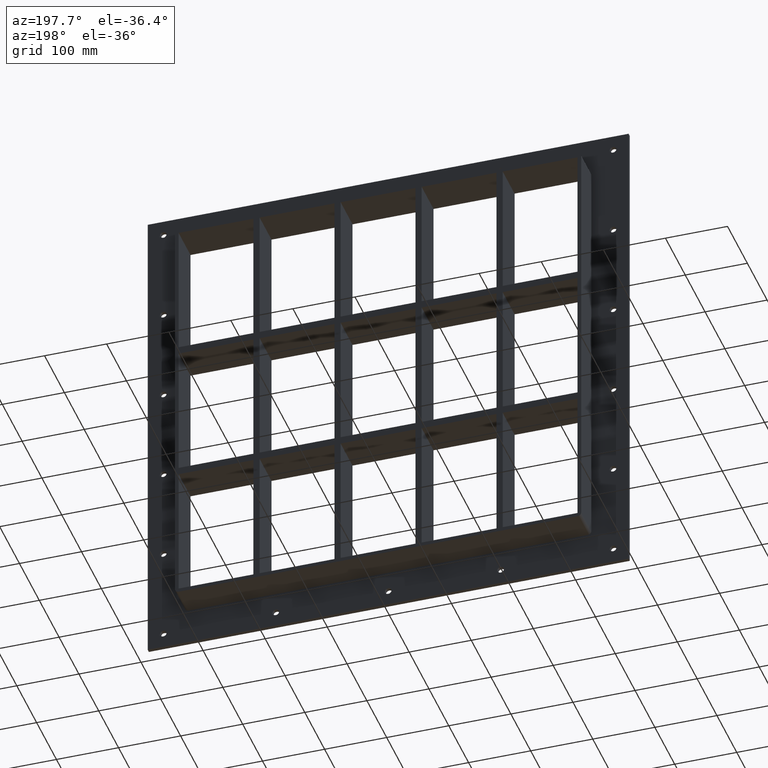
[diagram: clean part render]
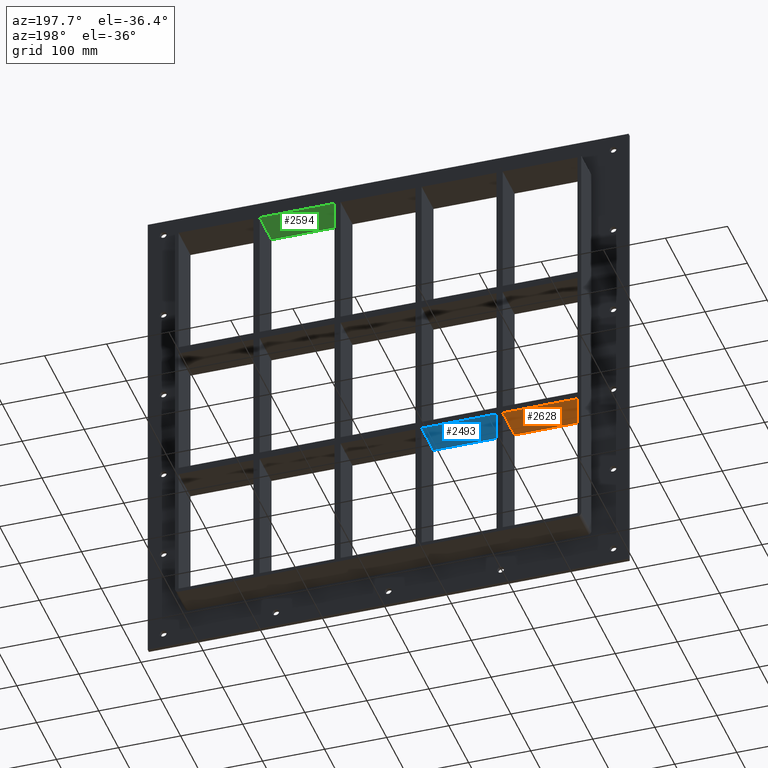
[diagram: same view with three faces highlighted in distinct colors, each labeled with its STEP entity id]
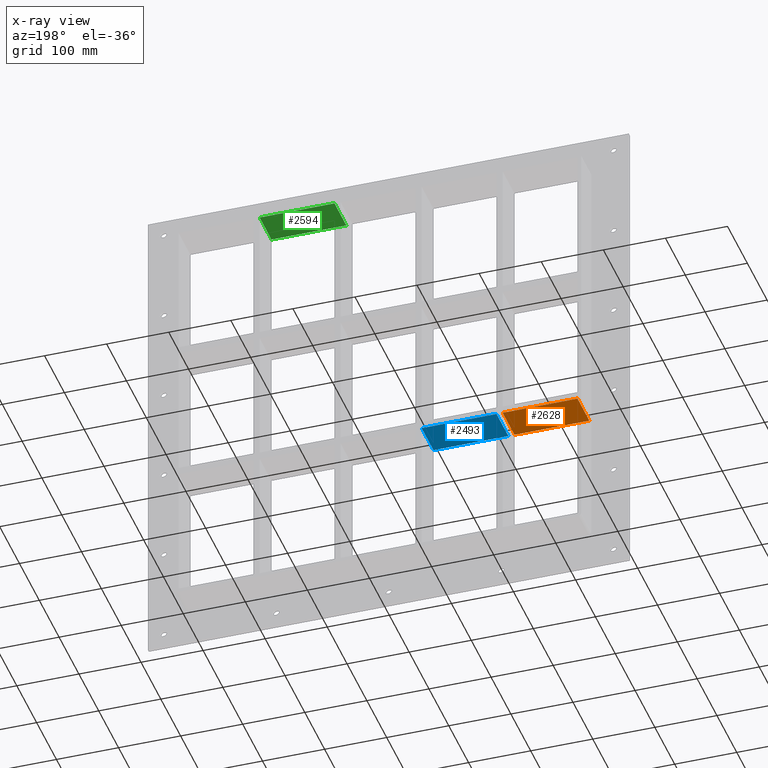
[diagram: x-ray of the same camera — body ghosted, the three highlighted faces saturated]
A machine part, auxiliary view with three faces highlighted in distinct colors.
The next image is the same camera in x-ray (body ghosted, the three faces saturated) — at least one of them is partly hidden behind the body in this view.
Their STEP definitions:

[orange] entity #2628 — the highlighted planar face has unit normal (0, 0, -1).
#1574=CARTESIAN_POINT('',(-321.25000000000045,57.0,-121.00000000001046));
#1575=VERTEX_POINT('',#1574);
#1592=CARTESIAN_POINT('',(-200.7500000000021,57.0,-121.00000000001043));
#1593=VERTEX_POINT('',#1592);
#1600=CARTESIAN_POINT('',(-200.75000000000205,57.0,-121.00000000001043));
#1601=DIRECTION('',(-1.0,0.0,0.0));
#1602=VECTOR('',#1601,120.49999999999841);
#1603=LINE('',#1600,#1602);
#1604=EDGE_CURVE('',#1593,#1575,#1603,.T.);
#2425=CARTESIAN_POINT('',(-200.7500000000021,-3.0,-121.00000000001043));
#2426=VERTEX_POINT('',#2425);
#2427=CARTESIAN_POINT('',(-321.25000000000045,-3.0,-121.00000000001046));
#2428=VERTEX_POINT('',#2427);
#2429=CARTESIAN_POINT('',(-200.75000000000205,-3.0,-121.00000000001043));
#2430=DIRECTION('',(-1.0,0.0,0.0));
#2431=VECTOR('',#2430,120.49999999999841);
#2432=LINE('',#2429,#2431);
#2433=EDGE_CURVE('',#2426,#2428,#2432,.T.);
#2607=CARTESIAN_POINT('',(321.25,-3.0,-121.00000000001029));
#2608=DIRECTION('',(0.0,0.0,-1.0));
#2609=DIRECTION('',(-1.0,0.0,0.0));
#2610=AXIS2_PLACEMENT_3D('',#2607,#2608,#2609);
#2611=PLANE('',#2610);
#2612=CARTESIAN_POINT('',(-200.75000000000205,-3.0,-121.0000000000104));
#2613=DIRECTION('',(0.0,1.0,0.0));
#2614=VECTOR('',#2613,60.0);
#2615=LINE('',#2612,#2614);
#2616=EDGE_CURVE('',#2426,#1593,#2615,.T.);
#2617=ORIENTED_EDGE('',*,*,#2616,.F.);
#2618=ORIENTED_EDGE('',*,*,#2433,.T.);
#2619=CARTESIAN_POINT('',(-321.25,57.000000000000007,-121.00000000001044));
#2620=DIRECTION('',(0.0,-1.0,0.0));
#2621=VECTOR('',#2620,60.000000000000007);
#2622=LINE('',#2619,#2621);
#2623=EDGE_CURVE('',#1575,#2428,#2622,.T.);
#2624=ORIENTED_EDGE('',*,*,#2623,.F.);
#2625=ORIENTED_EDGE('',*,*,#1604,.F.);
#2626=EDGE_LOOP('',(#2617,#2618,#2624,#2625));
#2627=FACE_OUTER_BOUND('',#2626,.T.);
#2628=ADVANCED_FACE('',(#2627),#2611,.T.);

[blue] entity #2493 — the highlighted planar face has unit normal (0, 0, -1).
#1610=CARTESIAN_POINT('',(-70.250000000002061,57.0,-121.00000000001039));
#1611=VERTEX_POINT('',#1610);
#1618=CARTESIAN_POINT('',(-190.75000000000728,57.0,-121.00000000001043));
#1619=VERTEX_POINT('',#1618);
#1620=CARTESIAN_POINT('',(-70.250000000002046,57.0,-121.0000000000104));
#1621=DIRECTION('',(-1.0,0.0,0.0));
#1622=VECTOR('',#1621,120.50000000000523);
#1623=LINE('',#1620,#1622);
#1624=EDGE_CURVE('',#1611,#1619,#1623,.T.);
#2005=CARTESIAN_POINT('',(-70.250000000002061,-3.0,-121.00000000001039));
#2006=VERTEX_POINT('',#2005);
#2007=CARTESIAN_POINT('',(-70.250000000002089,57.0,-121.00000000001039));
#2008=DIRECTION('',(0.0,-1.0,0.0));
#2009=VECTOR('',#2008,60.0);
#2010=LINE('',#2007,#2009);
#2011=EDGE_CURVE('',#1611,#2006,#2010,.T.);
#2390=CARTESIAN_POINT('',(-190.75000000000728,-3.0,-121.00000000001043));
#2391=VERTEX_POINT('',#2390);
#2398=CARTESIAN_POINT('',(-70.250000000002046,-3.0,-121.0000000000104));
#2399=DIRECTION('',(-1.0,0.0,0.0));
#2400=VECTOR('',#2399,120.50000000000523);
#2401=LINE('',#2398,#2400);
#2402=EDGE_CURVE('',#2006,#2391,#2401,.T.);
#2477=CARTESIAN_POINT('',(321.25,-3.0,-121.00000000001029));
#2478=DIRECTION('',(0.0,0.0,-1.0));
#2479=DIRECTION('',(-1.0,0.0,0.0));
#2480=AXIS2_PLACEMENT_3D('',#2477,#2478,#2479);
#2481=PLANE('',#2480);
#2482=ORIENTED_EDGE('',*,*,#2011,.T.);
#2483=ORIENTED_EDGE('',*,*,#2402,.T.);
#2484=CARTESIAN_POINT('',(-190.75000000000728,57.0,-121.0000000000104));
#2485=DIRECTION('',(0.0,-1.0,0.0));
#2486=VECTOR('',#2485,60.0);
#2487=LINE('',#2484,#2486);
#2488=EDGE_CURVE('',#1619,#2391,#2487,.T.);
#2489=ORIENTED_EDGE('',*,*,#2488,.F.);
#2490=ORIENTED_EDGE('',*,*,#1624,.F.);
#2491=EDGE_LOOP('',(#2482,#2483,#2489,#2490));
#2492=FACE_OUTER_BOUND('',#2491,.T.);
#2493=ADVANCED_FACE('',(#2492),#2481,.T.);

[green] entity #2594 — the highlighted planar face has unit normal (0, 0, 1).
#1071=CARTESIAN_POINT('',(190.7499999999979,-3.0,339.00000000000011));
#1072=VERTEX_POINT('',#1071);
#1079=CARTESIAN_POINT('',(190.7499999999979,57.0,339.00000000000011));
#1080=VERTEX_POINT('',#1079);
#1081=CARTESIAN_POINT('',(190.7499999999979,57.000000000000007,339.00000000000011));
#1082=DIRECTION('',(0.0,-1.0,0.0));
#1083=VECTOR('',#1082,60.000000000000007);
#1084=LINE('',#1081,#1083);
#1085=EDGE_CURVE('',#1080,#1072,#1084,.T.);
#1164=CARTESIAN_POINT('',(70.249999999992738,57.0,339.00000000000011));
#1165=VERTEX_POINT('',#1164);
#1172=CARTESIAN_POINT('',(70.249999999992738,-3.0,339.00000000000011));
#1173=VERTEX_POINT('',#1172);
#1174=CARTESIAN_POINT('',(70.249999999992738,-3.0,339.00000000000011));
#1175=DIRECTION('',(0.0,1.0,0.0));
#1176=VECTOR('',#1175,60.000000000000007);
#1177=LINE('',#1174,#1176);
#1178=EDGE_CURVE('',#1173,#1165,#1177,.T.);
#1449=CARTESIAN_POINT('',(190.7499999999979,57.0,339.00000000000011));
#1450=DIRECTION('',(-1.0,0.0,0.0));
#1451=VECTOR('',#1450,120.50000000000517);
#1452=LINE('',#1449,#1451);
#1453=EDGE_CURVE('',#1080,#1165,#1452,.T.);
#2307=CARTESIAN_POINT('',(70.249999999992724,-3.0,339.00000000000011));
#2308=DIRECTION('',(1.0,0.0,0.0));
#2309=VECTOR('',#2308,120.50000000000517);
#2310=LINE('',#2307,#2309);
#2311=EDGE_CURVE('',#1173,#1072,#2310,.T.);
#2583=CARTESIAN_POINT('',(-321.25,0.0,339.00000000000011));
#2584=DIRECTION('',(0.0,0.0,1.0));
#2585=DIRECTION('',(1.0,0.0,0.0));
#2586=AXIS2_PLACEMENT_3D('',#2583,#2584,#2585);
#2587=PLANE('',#2586);
#2588=ORIENTED_EDGE('',*,*,#1085,.T.);
#2589=ORIENTED_EDGE('',*,*,#2311,.F.);
#2590=ORIENTED_EDGE('',*,*,#1178,.T.);
#2591=ORIENTED_EDGE('',*,*,#1453,.F.);
#2592=EDGE_LOOP('',(#2588,#2589,#2590,#2591));
#2593=FACE_OUTER_BOUND('',#2592,.T.);
#2594=ADVANCED_FACE('',(#2593),#2587,.F.);